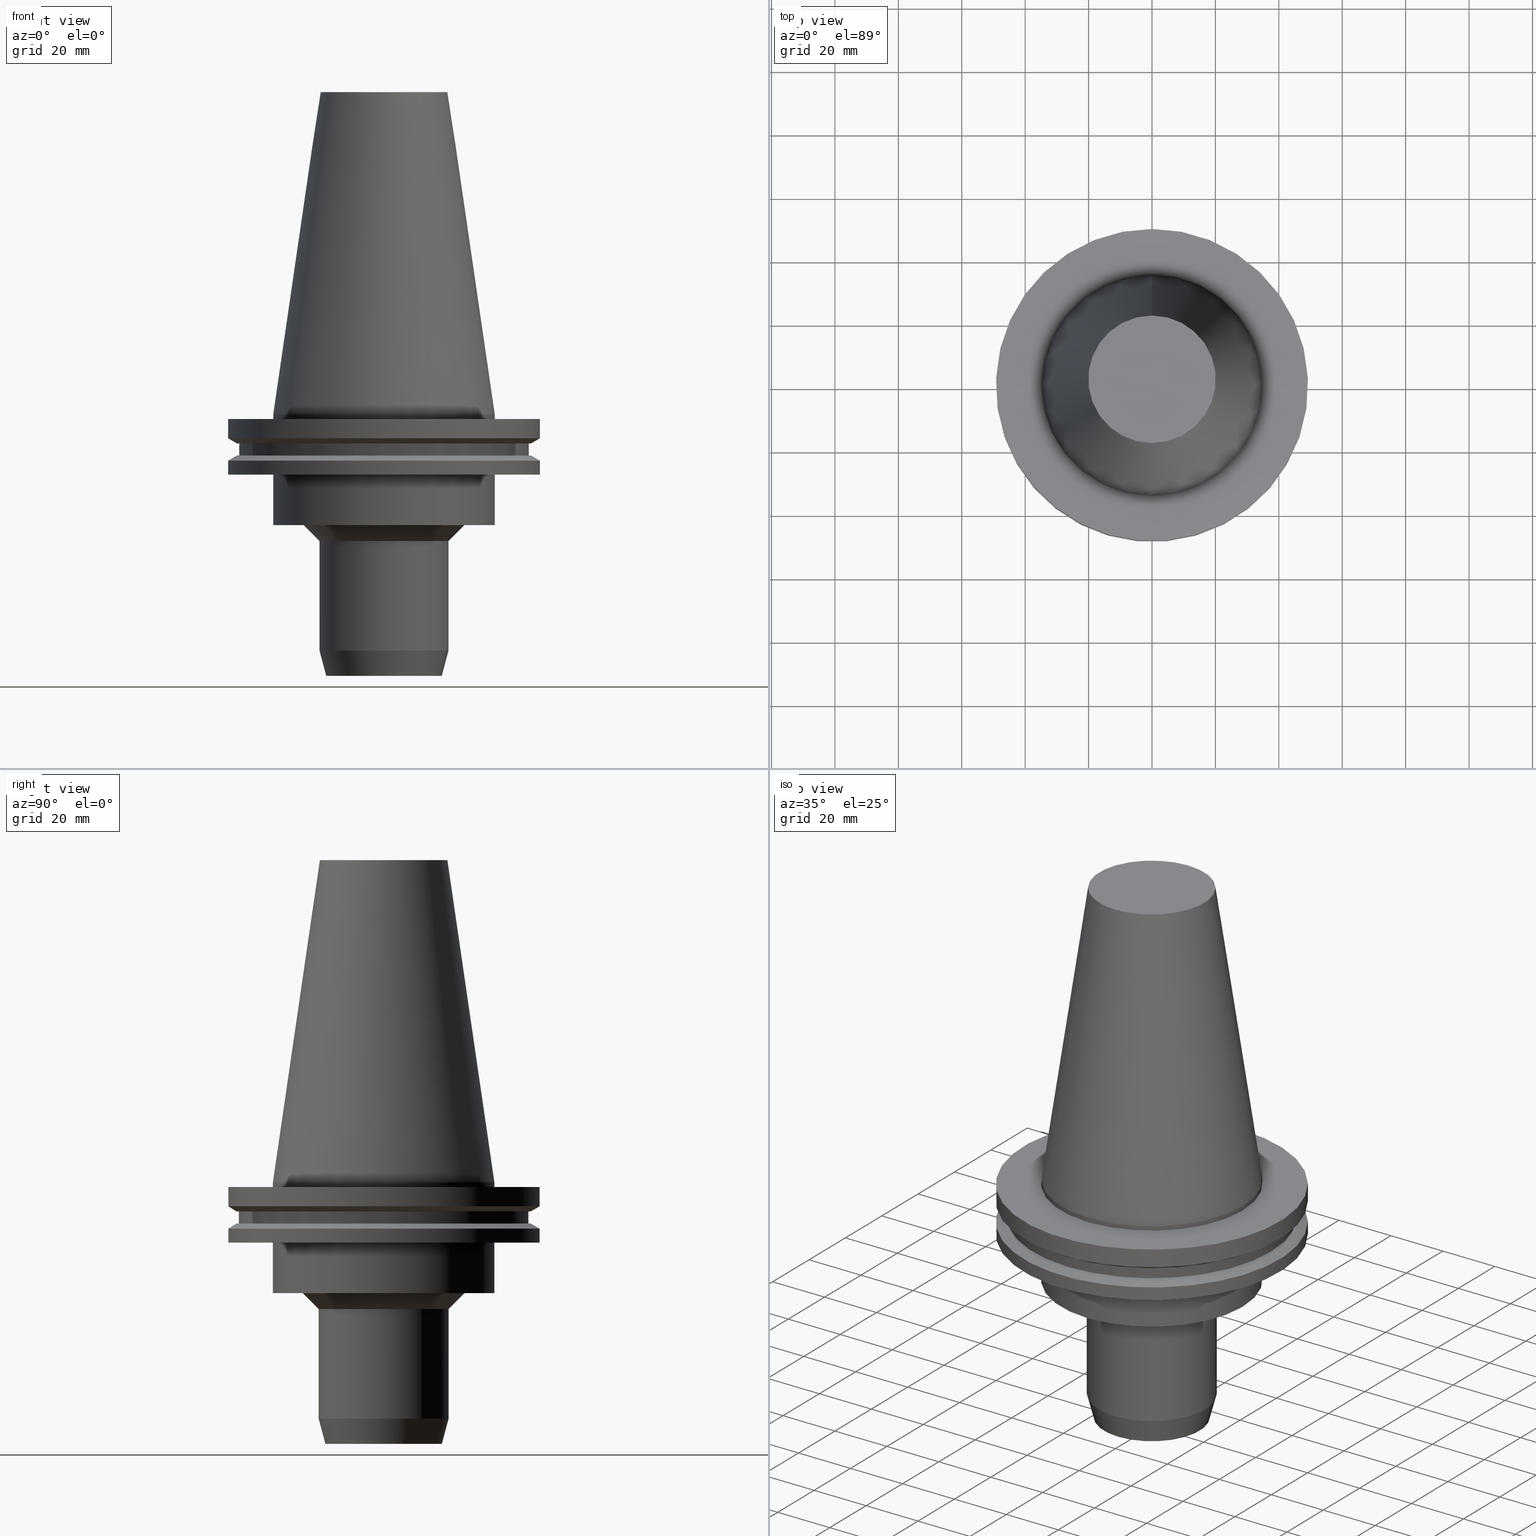
[diagram: canonical four-view strip — front | top / right | iso, engineering-drawing reading convention]
A machine part, canonical four-view strip (front | top / right | iso — engineering-drawing reading convention). The complete STEP part file that produces these views, byte-faithful:
ISO-10303-21;
HEADER;
FILE_DESCRIPTION((''),'1');
FILE_NAME('V:/90_\X2\53D65F9730C730FC30BF\X0\/00_\X2\6DE18DEF30C730FC30BF\X0\/ALL/BCV-BKUS\X2\FF76FF80FF9BFF78FF9E752852A05DE556F3\X0\201801/BCV50-MGT/BCV50-MGT12-3.25.stp','2018-02-01T01:41:00',(''),(''),'Spatial Interop R21 SP3','Kubotek KeyCreator 2011 V10.0.2 (22737)',' ');
FILE_SCHEMA(('automotive_design'));
ENDSEC;
DATA;
#1=MECHANICAL_DESIGN_GEOMETRIC_PRESENTATION_REPRESENTATION(' ',(#10,#11,#12,#13,#14,#15,#16,#17,#18,#19,#20,#21,#22,#23,#24,#25,#26,#27,#28,#29,#30,#31,#32,#33,#34,#35,#36,#37,#38,#39,#40,#41,#42,#43,#44,#45),#6);
#2=PRODUCT_DEFINITION_CONTEXT('',#46,'design');
#3=APPLICATION_PROTOCOL_DEFINITION('INTERNATIONAL STANDARD','automotive_design',1994,#46);
#4=PRODUCT_CATEGORY_RELATIONSHIP('NONE','NONE',#47,#48);
#5=SHAPE_DEFINITION_REPRESENTATION(#49,#50);
#6= (GEOMETRIC_REPRESENTATION_CONTEXT(3)GLOBAL_UNCERTAINTY_ASSIGNED_CONTEXT((#53))GLOBAL_UNIT_ASSIGNED_CONTEXT((#55,#56,#57))REPRESENTATION_CONTEXT('NONE','WORKSPACE'));
#10=STYLED_ITEM('',(#59,#60),#61);
#11=STYLED_ITEM('',(#62),#63);
#12=STYLED_ITEM('',(#64),#65);
#13=STYLED_ITEM('',(#66),#67);
#14=STYLED_ITEM('',(#68),#69);
#15=STYLED_ITEM('',(#70),#71);
#16=STYLED_ITEM('',(#72,#73),#74);
#17=STYLED_ITEM('',(#75,#76),#77);
#18=STYLED_ITEM('',(#78),#79);
#19=STYLED_ITEM('',(#80,#81),#82);
#20=STYLED_ITEM('',(#83,#84),#85);
#21=STYLED_ITEM('',(#86,#87),#88);
#22=STYLED_ITEM('',(#89),#90);
#23=STYLED_ITEM('',(#91),#92);
#24=STYLED_ITEM('',(#93),#94);
#25=STYLED_ITEM('',(#95,#96),#97);
#26=STYLED_ITEM('',(#98,#99),#100);
#27=STYLED_ITEM('',(#101),#102);
#28=STYLED_ITEM('',(#103,#104),#105);
#29=STYLED_ITEM('',(#106),#107);
#30=STYLED_ITEM('',(#108),#109);
#31=STYLED_ITEM('',(#110,#111),#112);
#32=STYLED_ITEM('',(#113,#114),#115);
#33=STYLED_ITEM('',(#116,#117),#118);
#34=STYLED_ITEM('',(#119,#120),#121);
#35=STYLED_ITEM('',(#122),#123);
#36=STYLED_ITEM('',(#124),#125);
#37=STYLED_ITEM('',(#126,#127),#128);
#38=STYLED_ITEM('',(#129),#130);
#39=STYLED_ITEM('',(#131),#132);
#40=STYLED_ITEM('',(#133,#134),#135);
#41=STYLED_ITEM('',(#136,#137),#138);
#42=STYLED_ITEM('',(#139),#140);
#43=STYLED_ITEM('',(#141,#142),#143);
#44=STYLED_ITEM('',(#144,#145),#146);
#45=STYLED_ITEM('',(#147,#148),#149);
#46=APPLICATION_CONTEXT(' ');
#47=PRODUCT_CATEGORY('part','NONE');
#48=PRODUCT_RELATED_PRODUCT_CATEGORY('detail',' ',(#150));
#49=PRODUCT_DEFINITION_SHAPE('NONE','NONE',#151);
#50=ADVANCED_BREP_SHAPE_REPRESENTATION('Unnamed[1]',(#112,#152),#6);
#53=UNCERTAINTY_MEASURE_WITH_UNIT(LENGTH_MEASURE(1.0E-006),#55,'','');
#55= (CONVERSION_BASED_UNIT('MILLIMETRE',#155)LENGTH_UNIT()NAMED_UNIT(#158));
#56= (NAMED_UNIT(#160)PLANE_ANGLE_UNIT()SI_UNIT($,.RADIAN.));
#57= (NAMED_UNIT(#160)SOLID_ANGLE_UNIT()SI_UNIT($,.STERADIAN.));
#59=PRESENTATION_STYLE_ASSIGNMENT((#166));
#60=PRESENTATION_STYLE_ASSIGNMENT((#167));
#61=ADVANCED_FACE('Unnamed[1]',(#168,#169),#170,.T.);
#62=PRESENTATION_STYLE_ASSIGNMENT((#171));
#63=EDGE_CURVE('Unnamed[1]',#172,#172,#173,.T.);
#64=PRESENTATION_STYLE_ASSIGNMENT((#174));
#65=EDGE_CURVE('Unnamed[1]',#175,#175,#176,.T.);
#66=PRESENTATION_STYLE_ASSIGNMENT((#177));
#67=EDGE_CURVE('Unnamed[1]',#178,#178,#179,.T.);
#68=PRESENTATION_STYLE_ASSIGNMENT((#180));
#69=EDGE_CURVE('Unnamed[1]',#181,#181,#182,.T.);
#70=PRESENTATION_STYLE_ASSIGNMENT((#183));
#71=EDGE_CURVE('Unnamed[1]',#184,#184,#185,.T.);
#72=PRESENTATION_STYLE_ASSIGNMENT((#186));
#73=PRESENTATION_STYLE_ASSIGNMENT((#187));
#74=ADVANCED_FACE('Unnamed[1]',(#188),#189,.T.);
#75=PRESENTATION_STYLE_ASSIGNMENT((#190));
#76=PRESENTATION_STYLE_ASSIGNMENT((#191));
#77=ADVANCED_FACE('Unnamed[1]',(#192,#193),#194,.T.);
#78=PRESENTATION_STYLE_ASSIGNMENT((#195));
#79=EDGE_CURVE('Unnamed[1]',#196,#196,#197,.T.);
#80=PRESENTATION_STYLE_ASSIGNMENT((#198));
#81=PRESENTATION_STYLE_ASSIGNMENT((#199));
#82=ADVANCED_FACE('Unnamed[1]',(#200,#201),#202,.T.);
#83=PRESENTATION_STYLE_ASSIGNMENT((#203));
#84=PRESENTATION_STYLE_ASSIGNMENT((#204));
#85=ADVANCED_FACE('Unnamed[1]',(#205,#206),#207,.T.);
#86=PRESENTATION_STYLE_ASSIGNMENT((#208));
#87=PRESENTATION_STYLE_ASSIGNMENT((#209));
#88=ADVANCED_FACE('Unnamed[1]',(#210,#211),#212,.T.);
#89=PRESENTATION_STYLE_ASSIGNMENT((#213));
#90=EDGE_CURVE('Unnamed[1]',#214,#214,#215,.T.);
#91=PRESENTATION_STYLE_ASSIGNMENT((#216));
#92=EDGE_CURVE('Unnamed[1]',#217,#217,#218,.T.);
#93=PRESENTATION_STYLE_ASSIGNMENT((#219));
#94=EDGE_CURVE('Unnamed[1]',#220,#220,#221,.T.);
#95=PRESENTATION_STYLE_ASSIGNMENT((#222));
#96=PRESENTATION_STYLE_ASSIGNMENT((#223));
#97=ADVANCED_FACE('Unnamed[1]',(#224),#225,.T.);
#98=PRESENTATION_STYLE_ASSIGNMENT((#226));
#99=PRESENTATION_STYLE_ASSIGNMENT((#227));
#100=ADVANCED_FACE('Unnamed[1]',(#228,#229),#230,.T.);
#101=PRESENTATION_STYLE_ASSIGNMENT((#231));
#102=EDGE_CURVE('Unnamed[1]',#232,#232,#233,.T.);
#103=PRESENTATION_STYLE_ASSIGNMENT((#234));
#104=PRESENTATION_STYLE_ASSIGNMENT((#235));
#105=ADVANCED_FACE('Unnamed[1]',(#236,#237),#238,.T.);
#106=PRESENTATION_STYLE_ASSIGNMENT((#239));
#107=EDGE_CURVE('Unnamed[1]',#240,#240,#241,.T.);
#108=PRESENTATION_STYLE_ASSIGNMENT((#242));
#109=EDGE_CURVE('Unnamed[1]',#243,#243,#244,.T.);
#110=PRESENTATION_STYLE_ASSIGNMENT((#245));
#111=PRESENTATION_STYLE_ASSIGNMENT((#246));
#112=MANIFOLD_SOLID_BREP('Unnamed[1]',#247);
#113=PRESENTATION_STYLE_ASSIGNMENT((#248));
#114=PRESENTATION_STYLE_ASSIGNMENT((#249));
#115=ADVANCED_FACE('Unnamed[1]',(#250,#251),#252,.T.);
#116=PRESENTATION_STYLE_ASSIGNMENT((#253));
#117=PRESENTATION_STYLE_ASSIGNMENT((#254));
#118=ADVANCED_FACE('Unnamed[1]',(#255,#256),#257,.T.);
#119=PRESENTATION_STYLE_ASSIGNMENT((#258));
#120=PRESENTATION_STYLE_ASSIGNMENT((#259));
#121=ADVANCED_FACE('Unnamed[1]',(#260,#261),#262,.T.);
#122=PRESENTATION_STYLE_ASSIGNMENT((#263));
#123=EDGE_CURVE('Unnamed[1]',#264,#264,#265,.T.);
#124=PRESENTATION_STYLE_ASSIGNMENT((#266));
#125=EDGE_CURVE('Unnamed[1]',#267,#267,#268,.T.);
#126=PRESENTATION_STYLE_ASSIGNMENT((#269));
#127=PRESENTATION_STYLE_ASSIGNMENT((#270));
#128=ADVANCED_FACE('Unnamed[1]',(#271,#272),#273,.T.);
#129=PRESENTATION_STYLE_ASSIGNMENT((#274));
#130=EDGE_CURVE('Unnamed[1]',#275,#275,#276,.T.);
#131=PRESENTATION_STYLE_ASSIGNMENT((#277));
#132=EDGE_CURVE('Unnamed[1]',#278,#278,#279,.T.);
#133=PRESENTATION_STYLE_ASSIGNMENT((#280));
#134=PRESENTATION_STYLE_ASSIGNMENT((#281));
#135=ADVANCED_FACE('Unnamed[1]',(#282,#283),#284,.T.);
#136=PRESENTATION_STYLE_ASSIGNMENT((#285));
#137=PRESENTATION_STYLE_ASSIGNMENT((#286));
#138=ADVANCED_FACE('Unnamed[1]',(#287,#288),#289,.T.);
#139=PRESENTATION_STYLE_ASSIGNMENT((#290));
#140=EDGE_CURVE('Unnamed[1]',#291,#291,#292,.T.);
#141=PRESENTATION_STYLE_ASSIGNMENT((#293));
#142=PRESENTATION_STYLE_ASSIGNMENT((#294));
#143=ADVANCED_FACE('Unnamed[1]',(#295,#296),#297,.T.);
#144=PRESENTATION_STYLE_ASSIGNMENT((#298));
#145=PRESENTATION_STYLE_ASSIGNMENT((#299));
#146=ADVANCED_FACE('Unnamed[1]',(#300,#301),#302,.T.);
#147=PRESENTATION_STYLE_ASSIGNMENT((#303));
#148=PRESENTATION_STYLE_ASSIGNMENT((#304));
#149=ADVANCED_FACE('Unnamed[1]',(#305,#306),#307,.T.);
#150=PRODUCT('Unnamed[1]','Unnamed[1]','PART-Unnamed[1]-DESC',(#308));
#151=PRODUCT_DEFINITION('NONE','NONE',#309,#2);
#152=AXIS2_PLACEMENT_3D('',#310,#311,#312);
#155=LENGTH_MEASURE_WITH_UNIT(LENGTH_MEASURE(1.0),#313);
#158=DIMENSIONAL_EXPONENTS(1.0,0.0,0.0,0.0,0.0,0.0,0.0);
#160=DIMENSIONAL_EXPONENTS(0.0,0.0,0.0,0.0,0.0,0.0,0.0);
#166=SURFACE_STYLE_USAGE(.BOTH.,#314);
#167=CURVE_STYLE('',#315,POSITIVE_LENGTH_MEASURE(1000.0),#316);
#168=FACE_BOUND('',#317,.T.);
#169=FACE_OUTER_BOUND('',#318,.T.);
#170=PLANE('',#319);
#171=CURVE_STYLE('',#320,POSITIVE_LENGTH_MEASURE(1000.0),#321);
#172=VERTEX_POINT('',#322);
#173=CIRCLE('',#323,45.6449999999999);
#174=CURVE_STYLE('',#324,POSITIVE_LENGTH_MEASURE(1000.0),#325);
#175=VERTEX_POINT('',#326);
#176=CIRCLE('',#327,34.925);
#177=CURVE_STYLE('',#328,POSITIVE_LENGTH_MEASURE(1000.0),#329);
#178=VERTEX_POINT('',#330);
#179=CIRCLE('',#331,45.6449999999999);
#180=CURVE_STYLE('',#332,POSITIVE_LENGTH_MEASURE(1000.0),#333);
#181=VERTEX_POINT('',#334);
#182=CIRCLE('',#335,34.925);
#183=CURVE_STYLE('',#336,POSITIVE_LENGTH_MEASURE(1000.0),#337);
#184=VERTEX_POINT('',#338);
#185=CIRCLE('',#339,49.2124999999999);
#186=SURFACE_STYLE_USAGE(.BOTH.,#340);
#187=CURVE_STYLE('',#341,POSITIVE_LENGTH_MEASURE(1000.0),#342);
#188=FACE_OUTER_BOUND('',#343,.T.);
#189=PLANE('',#344);
#190=SURFACE_STYLE_USAGE(.BOTH.,#345);
#191=CURVE_STYLE('',#346,POSITIVE_LENGTH_MEASURE(1000.0),#347);
#192=FACE_BOUND('',#348,.T.);
#193=FACE_BOUND('',#349,.T.);
#194=CYLINDRICAL_SURFACE('',#350,49.2125);
#195=CURVE_STYLE('',#351,POSITIVE_LENGTH_MEASURE(1000.0),#352);
#196=VERTEX_POINT('',#353);
#197=CIRCLE('',#354,20.1083333333333);
#198=SURFACE_STYLE_USAGE(.BOTH.,#355);
#199=CURVE_STYLE('',#356,POSITIVE_LENGTH_MEASURE(1000.0),#357);
#200=FACE_BOUND('',#358,.T.);
#201=FACE_BOUND('',#359,.T.);
#202=CONICAL_SURFACE('',#360,27.5166666666666,0.144812498238938);
#203=SURFACE_STYLE_USAGE(.BOTH.,#361);
#204=CURVE_STYLE('',#362,POSITIVE_LENGTH_MEASURE(1000.0),#363);
#205=FACE_BOUND('',#364,.T.);
#206=FACE_BOUND('',#365,.T.);
#207=CONICAL_SURFACE('',#366,47.8225292269259,1.04719755119659);
#208=SURFACE_STYLE_USAGE(.BOTH.,#367);
#209=CURVE_STYLE('',#368,POSITIVE_LENGTH_MEASURE(1000.0),#369);
#210=FACE_BOUND('',#370,.T.);
#211=FACE_OUTER_BOUND('',#371,.T.);
#212=PLANE('',#372);
#213=CURVE_STYLE('',#373,POSITIVE_LENGTH_MEASURE(1000.0),#374);
#214=VERTEX_POINT('',#375);
#215=CIRCLE('',#376,49.2124999999999);
#216=CURVE_STYLE('',#377,POSITIVE_LENGTH_MEASURE(1000.0),#378);
#217=VERTEX_POINT('',#379);
#218=CIRCLE('',#380,46.4325584538518);
#219=CURVE_STYLE('',#381,POSITIVE_LENGTH_MEASURE(1000.0),#382);
#220=VERTEX_POINT('',#383);
#221=CIRCLE('',#384,18.3564064645584);
#222=SURFACE_STYLE_USAGE(.BOTH.,#385);
#223=CURVE_STYLE('',#386,POSITIVE_LENGTH_MEASURE(1000.0),#387);
#224=FACE_OUTER_BOUND('',#388,.T.);
#225=PLANE('',#389);
#226=SURFACE_STYLE_USAGE(.BOTH.,#390);
#227=CURVE_STYLE('',#391,POSITIVE_LENGTH_MEASURE(1000.0),#392);
#228=FACE_BOUND('',#393,.T.);
#229=FACE_BOUND('',#394,.T.);
#230=CONICAL_SURFACE('',#395,22.9999999999992,0.785398163397405);
#231=CURVE_STYLE('',#396,POSITIVE_LENGTH_MEASURE(1000.0),#397);
#232=VERTEX_POINT('',#398);
#233=CIRCLE('',#399,49.2125);
#234=SURFACE_STYLE_USAGE(.BOTH.,#400);
#235=CURVE_STYLE('',#401,POSITIVE_LENGTH_MEASURE(1000.0),#402);
#236=FACE_BOUND('',#403,.T.);
#237=FACE_OUTER_BOUND('',#404,.T.);
#238=PLANE('',#405);
#239=CURVE_STYLE('',#406,POSITIVE_LENGTH_MEASURE(1000.0),#407);
#240=VERTEX_POINT('',#408);
#241=CIRCLE('',#409,49.2124999999999);
#242=CURVE_STYLE('',#410,POSITIVE_LENGTH_MEASURE(1000.0),#411);
#243=VERTEX_POINT('',#412);
#244=CIRCLE('',#413,20.5000000000002);
#245=SURFACE_STYLE_USAGE(.BOTH.,#414);
#246=CURVE_STYLE('',#415,POSITIVE_LENGTH_MEASURE(1000.0),#416);
#247=CLOSED_SHELL('',(#97,#82,#138,#128,#77,#149,#61,#121,#135,#85,#146,#105,#118,#88,#100,#115,#143,#74));
#248=SURFACE_STYLE_USAGE(.BOTH.,#417);
#249=CURVE_STYLE('',#418,POSITIVE_LENGTH_MEASURE(1000.0),#419);
#250=FACE_BOUND('',#420,.T.);
#251=FACE_BOUND('',#421,.T.);
#252=CYLINDRICAL_SURFACE('',#422,20.4999999999997);
#253=SURFACE_STYLE_USAGE(.BOTH.,#423);
#254=CURVE_STYLE('',#424,POSITIVE_LENGTH_MEASURE(1000.0),#425);
#255=FACE_BOUND('',#426,.T.);
#256=FACE_BOUND('',#427,.T.);
#257=CYLINDRICAL_SURFACE('',#428,34.925);
#258=SURFACE_STYLE_USAGE(.BOTH.,#429);
#259=CURVE_STYLE('',#430,POSITIVE_LENGTH_MEASURE(1000.0),#431);
#260=FACE_BOUND('',#432,.T.);
#261=FACE_BOUND('',#433,.T.);
#262=CYLINDRICAL_SURFACE('',#434,45.6449999999999);
#263=CURVE_STYLE('',#435,POSITIVE_LENGTH_MEASURE(1000.0),#436);
#264=VERTEX_POINT('',#437);
#265=CIRCLE('',#438,34.925);
#266=CURVE_STYLE('',#439,POSITIVE_LENGTH_MEASURE(1000.0),#440);
#267=VERTEX_POINT('',#441);
#268=CIRCLE('',#442,25.4999999999991);
#269=SURFACE_STYLE_USAGE(.BOTH.,#443);
#270=CURVE_STYLE('',#444,POSITIVE_LENGTH_MEASURE(1000.0),#445);
#271=FACE_OUTER_BOUND('',#446,.T.);
#272=FACE_BOUND('',#447,.T.);
#273=PLANE('',#448);
#274=CURVE_STYLE('',#449,POSITIVE_LENGTH_MEASURE(1000.0),#450);
#275=VERTEX_POINT('',#451);
#276=CIRCLE('',#452,20.4999999999992);
#277=CURVE_STYLE('',#453,POSITIVE_LENGTH_MEASURE(1000.0),#454);
#278=VERTEX_POINT('',#455);
#279=CIRCLE('',#456,34.925);
#280=SURFACE_STYLE_USAGE(.BOTH.,#457);
#281=CURVE_STYLE('',#458,POSITIVE_LENGTH_MEASURE(1000.0),#459);
#282=FACE_OUTER_BOUND('',#460,.T.);
#283=FACE_BOUND('',#461,.T.);
#284=PLANE('',#462);
#285=SURFACE_STYLE_USAGE(.BOTH.,#463);
#286=CURVE_STYLE('',#464,POSITIVE_LENGTH_MEASURE(1000.0),#465);
#287=FACE_BOUND('',#466,.T.);
#288=FACE_BOUND('',#467,.T.);
#289=CYLINDRICAL_SURFACE('',#468,34.925);
#290=CURVE_STYLE('',#469,POSITIVE_LENGTH_MEASURE(1000.0),#470);
#291=VERTEX_POINT('',#471);
#292=CIRCLE('',#472,46.432558453852);
#293=SURFACE_STYLE_USAGE(.BOTH.,#473);
#294=CURVE_STYLE('',#474,POSITIVE_LENGTH_MEASURE(1000.0),#475);
#295=FACE_BOUND('',#476,.T.);
#296=FACE_BOUND('',#477,.T.);
#297=CONICAL_SURFACE('',#478,19.4282032322793,0.261799387022769);
#298=SURFACE_STYLE_USAGE(.BOTH.,#479);
#299=CURVE_STYLE('',#480,POSITIVE_LENGTH_MEASURE(1000.0),#481);
#300=FACE_BOUND('',#482,.T.);
#301=FACE_BOUND('',#483,.T.);
#302=CYLINDRICAL_SURFACE('',#484,49.2124999999999);
#303=SURFACE_STYLE_USAGE(.BOTH.,#485);
#304=CURVE_STYLE('',#486,POSITIVE_LENGTH_MEASURE(1000.0),#487);
#305=FACE_BOUND('',#488,.T.);
#306=FACE_BOUND('',#489,.T.);
#307=CONICAL_SURFACE('',#490,47.822529226926,1.04719755119663);
#308=PRODUCT_CONTEXT('',#46,'mechanical');
#309=PRODUCT_DEFINITION_FORMATION_WITH_SPECIFIED_SOURCE(' ','NONE',#150,.NOT_KNOWN.);
#310=CARTESIAN_POINT('',(0.0,0.0,0.0));
#311=DIRECTION('',(0.0,0.0,1.0));
#312=DIRECTION('',(1.0,0.0,0.0));
#313= (NAMED_UNIT(#158)LENGTH_UNIT()SI_UNIT(.MILLI.,.METRE.));
#314=SURFACE_SIDE_STYLE('',(#492));
#315=DRAUGHTING_PRE_DEFINED_CURVE_FONT('continuous');
#316=COLOUR_RGB('',0.0,1.0,0.0);
#317=EDGE_LOOP('',(#493));
#318=EDGE_LOOP('',(#494));
#319=AXIS2_PLACEMENT_3D('',#495,#496,#497);
#320=DRAUGHTING_PRE_DEFINED_CURVE_FONT('continuous');
#321=COLOUR_RGB('',0.0,1.0,0.0);
#322=CARTESIAN_POINT('',(5.63337527607778E-016,45.6449999999999,-9.19999999999993));
#323=AXIS2_PLACEMENT_3D('',#498,#499,#500);
#324=DRAUGHTING_PRE_DEFINED_CURVE_FONT('continuous');
#325=COLOUR_RGB('',0.0,1.0,0.0);
#326=CARTESIAN_POINT('',(4.82986938111671E-029,34.925,-7.9153078510529E-013));
#327=AXIS2_PLACEMENT_3D('',#501,#502,#503);
#328=DRAUGHTING_PRE_DEFINED_CURVE_FONT('continuous');
#329=COLOUR_RGB('',0.0,1.0,0.0);
#330=CARTESIAN_POINT('',(7.98469713044071E-016,45.6449999999999,-13.04));
#331=AXIS2_PLACEMENT_3D('',#504,#505,#506);
#332=DRAUGHTING_PRE_DEFINED_CURVE_FONT('continuous');
#333=COLOUR_RGB('',0.0,1.0,0.0);
#334=CARTESIAN_POINT('',(9.18485099360511E-017,34.925,-1.5));
#335=AXIS2_PLACEMENT_3D('',#507,#508,#509);
#336=DRAUGHTING_PRE_DEFINED_CURVE_FONT('continuous');
#337=COLOUR_RGB('',0.0,1.0,0.0);
#338=CARTESIAN_POINT('',(1.16647607618786E-015,49.2124999999999,-19.0500000000001));
#339=AXIS2_PLACEMENT_3D('',#510,#511,#512);
#340=SURFACE_SIDE_STYLE('',(#513));
#341=DRAUGHTING_PRE_DEFINED_CURVE_FONT('continuous');
#342=COLOUR_RGB('',0.0,1.0,0.0);
#343=EDGE_LOOP('',(#514));
#344=AXIS2_PLACEMENT_3D('',#515,#516,#517);
#345=SURFACE_SIDE_STYLE('',(#518));
#346=DRAUGHTING_PRE_DEFINED_CURVE_FONT('continuous');
#347=COLOUR_RGB('',0.0,1.0,0.0);
#348=EDGE_LOOP('',(#519));
#349=EDGE_LOOP('',(#520));
#350=AXIS2_PLACEMENT_3D('',#521,#522,#523);
#351=DRAUGHTING_PRE_DEFINED_CURVE_FONT('continuous');
#352=COLOUR_RGB('',0.0,1.0,0.0);
#353=CARTESIAN_POINT('',(-6.22120573966855E-015,20.1083333333332,101.6));
#354=AXIS2_PLACEMENT_3D('',#524,#525,#526);
#355=SURFACE_SIDE_STYLE('',(#527));
#356=DRAUGHTING_PRE_DEFINED_CURVE_FONT('continuous');
#357=COLOUR_RGB('',0.0,1.0,0.0);
#358=EDGE_LOOP('',(#528));
#359=EDGE_LOOP('',(#529));
#360=AXIS2_PLACEMENT_3D('',#530,#531,#532);
#361=SURFACE_SIDE_STYLE('',(#533));
#362=DRAUGHTING_PRE_DEFINED_CURVE_FONT('continuous');
#363=COLOUR_RGB('',0.0,1.0,0.0);
#364=EDGE_LOOP('',(#534));
#365=EDGE_LOOP('',(#535));
#366=AXIS2_PLACEMENT_3D('',#536,#537,#538);
#367=SURFACE_SIDE_STYLE('',(#539));
#368=DRAUGHTING_PRE_DEFINED_CURVE_FONT('continuous');
#369=COLOUR_RGB('',0.0,1.0,0.0);
#370=EDGE_LOOP('',(#540));
#371=EDGE_LOOP('',(#541));
#372=AXIS2_PLACEMENT_3D('',#542,#543,#544);
#373=DRAUGHTING_PRE_DEFINED_CURVE_FONT('continuous');
#374=COLOUR_RGB('',0.0,1.0,0.0);
#375=CARTESIAN_POINT('',(9.18485099360509E-017,49.2124999999999,-1.49999999999999));
#376=AXIS2_PLACEMENT_3D('',#545,#546,#547);
#377=DRAUGHTING_PRE_DEFINED_CURVE_FONT('continuous');
#378=COLOUR_RGB('',0.0,1.0,0.0);
#379=CARTESIAN_POINT('',(7.98469713044071E-016,46.4325584538519,-13.04));
#380=AXIS2_PLACEMENT_3D('',#548,#549,#550);
#381=DRAUGHTING_PRE_DEFINED_CURVE_FONT('continuous');
#382=COLOUR_RGB('',0.0,1.0,0.0);
#383=CARTESIAN_POINT('',(5.0547296634807E-015,18.3564064645584,-82.55));
#384=AXIS2_PLACEMENT_3D('',#551,#552,#553);
#385=SURFACE_SIDE_STYLE('',(#554));
#386=DRAUGHTING_PRE_DEFINED_CURVE_FONT('continuous');
#387=COLOUR_RGB('',0.0,1.0,0.0);
#388=EDGE_LOOP('',(#555));
#389=AXIS2_PLACEMENT_3D('',#556,#557,#558);
#390=SURFACE_SIDE_STYLE('',(#559));
#391=DRAUGHTING_PRE_DEFINED_CURVE_FONT('continuous');
#392=COLOUR_RGB('',0.0,1.0,0.0);
#393=EDGE_LOOP('',(#560));
#394=EDGE_LOOP('',(#561));
#395=AXIS2_PLACEMENT_3D('',#562,#563,#564);
#396=DRAUGHTING_PRE_DEFINED_CURVE_FONT('continuous');
#397=COLOUR_RGB('',0.0,1.0,0.0);
#398=CARTESIAN_POINT('',(4.65059621976208E-016,49.2125,-7.59500000000002));
#399=AXIS2_PLACEMENT_3D('',#565,#566,#567);
#400=SURFACE_SIDE_STYLE('',(#568));
#401=DRAUGHTING_PRE_DEFINED_CURVE_FONT('continuous');
#402=COLOUR_RGB('',0.0,1.0,0.0);
#403=EDGE_LOOP('',(#569));
#404=EDGE_LOOP('',(#570));
#405=AXIS2_PLACEMENT_3D('',#571,#572,#573);
#406=DRAUGHTING_PRE_DEFINED_CURVE_FONT('continuous');
#407=COLOUR_RGB('',0.0,1.0,0.0);
#408=CARTESIAN_POINT('',(8.96747618675648E-016,49.2124999999999,-14.645));
#409=AXIS2_PLACEMENT_3D('',#574,#575,#576);
#410=DRAUGHTING_PRE_DEFINED_CURVE_FONT('continuous');
#411=COLOUR_RGB('',0.0,1.0,0.0);
#412=CARTESIAN_POINT('',(4.56487094321621E-015,20.5000000000003,-74.5499999901106));
#413=AXIS2_PLACEMENT_3D('',#577,#578,#579);
#414=SURFACE_SIDE_STYLE('',(#580));
#415=DRAUGHTING_PRE_DEFINED_CURVE_FONT('continuous');
#416=COLOUR_RGB('',0.0,1.0,0.0);
#417=SURFACE_SIDE_STYLE('',(#581));
#418=DRAUGHTING_PRE_DEFINED_CURVE_FONT('continuous');
#419=COLOUR_RGB('',0.0,1.0,0.0);
#420=EDGE_LOOP('',(#582));
#421=EDGE_LOOP('',(#583));
#422=AXIS2_PLACEMENT_3D('',#584,#585,#586);
#423=SURFACE_SIDE_STYLE('',(#587));
#424=DRAUGHTING_PRE_DEFINED_CURVE_FONT('continuous');
#425=COLOUR_RGB('',0.0,1.0,0.0);
#426=EDGE_LOOP('',(#588));
#427=EDGE_LOOP('',(#589));
#428=AXIS2_PLACEMENT_3D('',#590,#591,#592);
#429=SURFACE_SIDE_STYLE('',(#593));
#430=DRAUGHTING_PRE_DEFINED_CURVE_FONT('continuous');
#431=COLOUR_RGB('',0.0,1.0,0.0);
#432=EDGE_LOOP('',(#594));
#433=EDGE_LOOP('',(#595));
#434=AXIS2_PLACEMENT_3D('',#596,#597,#598);
#435=DRAUGHTING_PRE_DEFINED_CURVE_FONT('continuous');
#436=COLOUR_RGB('',0.0,1.0,0.0);
#437=CARTESIAN_POINT('',(2.14313189850787E-015,34.925,-35.0000000000001));
#438=AXIS2_PLACEMENT_3D('',#599,#600,#601);
#439=DRAUGHTING_PRE_DEFINED_CURVE_FONT('continuous');
#440=COLOUR_RGB('',0.0,1.0,0.0);
#441=CARTESIAN_POINT('',(2.14313189850789E-015,25.4999999999991,-35.0000000000003));
#442=AXIS2_PLACEMENT_3D('',#602,#603,#604);
#443=SURFACE_SIDE_STYLE('',(#605));
#444=DRAUGHTING_PRE_DEFINED_CURVE_FONT('continuous');
#445=COLOUR_RGB('',0.0,1.0,0.0);
#446=EDGE_LOOP('',(#606));
#447=EDGE_LOOP('',(#607));
#448=AXIS2_PLACEMENT_3D('',#608,#609,#610);
#449=DRAUGHTING_PRE_DEFINED_CURVE_FONT('continuous');
#450=COLOUR_RGB('',0.0,1.0,0.0);
#451=CARTESIAN_POINT('',(2.44929359829474E-015,20.4999999999993,-40.0000000000006));
#452=AXIS2_PLACEMENT_3D('',#611,#612,#613);
#453=DRAUGHTING_PRE_DEFINED_CURVE_FONT('continuous');
#454=COLOUR_RGB('',0.0,1.0,0.0);
#455=CARTESIAN_POINT('',(1.16647607618786E-015,34.925,-19.0500000000001));
#456=AXIS2_PLACEMENT_3D('',#614,#615,#616);
#457=SURFACE_SIDE_STYLE('',(#617));
#458=DRAUGHTING_PRE_DEFINED_CURVE_FONT('continuous');
#459=COLOUR_RGB('',0.0,1.0,0.0);
#460=EDGE_LOOP('',(#618));
#461=EDGE_LOOP('',(#619));
#462=AXIS2_PLACEMENT_3D('',#620,#621,#622);
#463=SURFACE_SIDE_STYLE('',(#623));
#464=DRAUGHTING_PRE_DEFINED_CURVE_FONT('continuous');
#465=COLOUR_RGB('',0.0,1.0,0.0);
#466=EDGE_LOOP('',(#624));
#467=EDGE_LOOP('',(#625));
#468=AXIS2_PLACEMENT_3D('',#626,#627,#628);
#469=DRAUGHTING_PRE_DEFINED_CURVE_FONT('continuous');
#470=COLOUR_RGB('',0.0,1.0,0.0);
#471=CARTESIAN_POINT('',(5.63337527607778E-016,46.432558453852,-9.19999999999993));
#472=AXIS2_PLACEMENT_3D('',#629,#630,#631);
#473=SURFACE_SIDE_STYLE('',(#632));
#474=DRAUGHTING_PRE_DEFINED_CURVE_FONT('continuous');
#475=COLOUR_RGB('',0.0,1.0,0.0);
#476=EDGE_LOOP('',(#633));
#477=EDGE_LOOP('',(#634));
#478=AXIS2_PLACEMENT_3D('',#635,#636,#637);
#479=SURFACE_SIDE_STYLE('',(#638));
#480=DRAUGHTING_PRE_DEFINED_CURVE_FONT('continuous');
#481=COLOUR_RGB('',0.0,1.0,0.0);
#482=EDGE_LOOP('',(#639));
#483=EDGE_LOOP('',(#640));
#484=AXIS2_PLACEMENT_3D('',#641,#642,#643);
#485=SURFACE_SIDE_STYLE('',(#644));
#486=DRAUGHTING_PRE_DEFINED_CURVE_FONT('continuous');
#487=COLOUR_RGB('',0.0,1.0,0.0);
#488=EDGE_LOOP('',(#645));
#489=EDGE_LOOP('',(#646));
#490=AXIS2_PLACEMENT_3D('',#647,#648,#649);
#492=SURFACE_STYLE_FILL_AREA(#650);
#493=ORIENTED_EDGE('',*,*,#63,.F.);
#494=ORIENTED_EDGE('',*,*,#140,.T.);
#495=CARTESIAN_POINT('',(5.63337527607778E-016,46.0387792269259,-9.19999999999993));
#496=DIRECTION('',(6.12323399573677E-017,1.22464679914735E-016,-1.0));
#497=DIRECTION('',(-1.23259516440783E-032,1.0,1.22464679914735E-016));
#498=CARTESIAN_POINT('',(5.6333752760778E-016,1.30468608390899E-014,-9.19999999999996));
#499=DIRECTION('',(6.12323399573677E-017,7.22462196173127E-016,-1.0));
#500=DIRECTION('',(-4.90652035331836E-032,1.0,7.22462196173127E-016));
#501=CARTESIAN_POINT('',(4.95993415593426E-029,6.40020863429802E-015,-8.10018718766514E-013));
#502=DIRECTION('',(6.12323399573677E-017,7.22462196173144E-016,-1.0));
#503=DIRECTION('',(-4.90652035331952E-032,1.0,7.22462196173144E-016));
#504=CARTESIAN_POINT('',(7.98469713044074E-016,1.58211156723946E-014,-13.04));
#505=DIRECTION('',(6.12323399573677E-017,7.22462196173127E-016,-1.0));
#506=DIRECTION('',(-4.90652035331836E-032,1.0,7.22462196173127E-016));
#507=CARTESIAN_POINT('',(9.18485099360524E-017,7.48390192855709E-015,-1.50000000000001));
#508=DIRECTION('',(6.12323399573677E-017,7.22462196173145E-016,-1.0));
#509=DIRECTION('',(-4.90652035331953E-032,1.0,7.22462196173145E-016));
#510=CARTESIAN_POINT('',(1.16647607618786E-015,2.0163113471395E-014,-19.0500000000001));
#511=DIRECTION('',(6.12323399573677E-017,7.22462196173164E-016,-1.0));
#512=DIRECTION('',(-4.90652035331884E-032,1.0,7.22462196173164E-016));
#513=SURFACE_STYLE_FILL_AREA(#651);
#514=ORIENTED_EDGE('',*,*,#94,.T.);
#515=CARTESIAN_POINT('',(5.0547296634807E-015,9.17820323227924,-82.55));
#516=DIRECTION('',(6.12323399573677E-017,1.22464679914735E-016,-1.0));
#517=DIRECTION('',(-1.23259516440783E-032,1.0,1.22464679914735E-016));
#518=SURFACE_STYLE_FILL_AREA(#652);
#519=ORIENTED_EDGE('',*,*,#102,.F.);
#520=ORIENTED_EDGE('',*,*,#90,.T.);
#521=CARTESIAN_POINT('',(2.78454065956132E-016,9.68560547139463E-015,-4.54750000000004));
#522=DIRECTION('',(6.12323399573677E-017,7.22462196173163E-016,-1.0));
#523=DIRECTION('',(-4.90652035331883E-032,1.0,7.22462196173163E-016));
#524=CARTESIAN_POINT('',(-6.22120573966855E-015,-6.70019504968894E-014,101.6));
#525=DIRECTION('',(6.12323399573677E-017,7.22462196173083E-016,-1.0));
#526=DIRECTION('',(-4.90652035331843E-032,1.0,7.22462196173083E-016));
#527=SURFACE_STYLE_FILL_AREA(#653);
#528=ORIENTED_EDGE('',*,*,#65,.F.);
#529=ORIENTED_EDGE('',*,*,#79,.T.);
#530=CARTESIAN_POINT('',(-3.11060286983425E-015,-3.03008709312957E-014,50.7999999999996));
#531=DIRECTION('',(6.12323399573677E-017,7.22462196173063E-016,-1.0));
#532=DIRECTION('',(-4.90652035331879E-032,1.0,7.22462196173063E-016));
#533=SURFACE_STYLE_FILL_AREA(#654);
#534=ORIENTED_EDGE('',*,*,#107,.F.);
#535=ORIENTED_EDGE('',*,*,#92,.T.);
#536=CARTESIAN_POINT('',(8.47608665859862E-016,1.64008915848236E-014,-13.8425));
#537=DIRECTION('',(6.12323399573677E-017,7.22462196173074E-016,-1.0));
#538=DIRECTION('',(-4.90652035331864E-032,1.0,7.22462196173074E-016));
#539=SURFACE_STYLE_FILL_AREA(#655);
#540=ORIENTED_EDGE('',*,*,#125,.F.);
#541=ORIENTED_EDGE('',*,*,#123,.T.);
#542=CARTESIAN_POINT('',(2.14313189850788E-015,30.2124999999996,-35.0000000000002));
#543=DIRECTION('',(6.12323399573677E-017,2.72625585657091E-014,-1.0));
#544=DIRECTION('',(-1.67417740693391E-030,1.0,2.72625585657091E-014));
#545=CARTESIAN_POINT('',(9.18485099360532E-017,7.4839019285571E-015,-1.50000000000003));
#546=DIRECTION('',(6.12323399573677E-017,7.22462196173164E-016,-1.0));
#547=DIRECTION('',(-4.90652035331884E-032,1.0,7.22462196173164E-016));
#548=CARTESIAN_POINT('',(7.98469713044074E-016,1.58211156723946E-014,-13.04));
#549=DIRECTION('',(6.12323399573677E-017,7.22462196173118E-016,-1.0));
#550=DIRECTION('',(-4.90652035331844E-032,1.0,7.22462196173118E-016));
#551=CARTESIAN_POINT('',(5.0547296634807E-015,6.60394629283868E-014,-82.55));
#552=DIRECTION('',(6.12323399573677E-017,7.22462196173126E-016,-1.0));
#553=DIRECTION('',(-4.90652035331923E-032,1.0,7.22462196173125E-016));
#554=SURFACE_STYLE_FILL_AREA(#656);
#555=ORIENTED_EDGE('',*,*,#79,.F.);
#556=CARTESIAN_POINT('',(-6.22120573966855E-015,10.0541666666666,101.6));
#557=DIRECTION('',(-6.12323399573677E-017,-1.22464679914735E-016,1.0));
#558=DIRECTION('',(1.23259516440783E-032,-1.0,-1.22464679914735E-016));
#559=SURFACE_STYLE_FILL_AREA(#657);
#560=ORIENTED_EDGE('',*,*,#130,.F.);
#561=ORIENTED_EDGE('',*,*,#125,.T.);
#562=CARTESIAN_POINT('',(2.29621274840132E-015,3.3492540990789E-014,-37.5000000000005));
#563=DIRECTION('',(-6.12323399573677E-017,-7.22462196173099E-016,1.0));
#564=DIRECTION('',(-4.9065203533189E-032,1.0,7.22462196173099E-016));
#565=CARTESIAN_POINT('',(4.65059621976211E-016,1.18873090142322E-014,-7.59500000000006));
#566=DIRECTION('',(6.12323399573677E-017,7.22462196173162E-016,-1.0));
#567=DIRECTION('',(-4.90652035331882E-032,1.0,7.22462196173162E-016));
#568=SURFACE_STYLE_FILL_AREA(#658);
#569=ORIENTED_EDGE('',*,*,#132,.F.);
#570=ORIENTED_EDGE('',*,*,#71,.T.);
#571=CARTESIAN_POINT('',(1.16647607618786E-015,42.06875,-19.0500000000001));
#572=DIRECTION('',(6.12323399573677E-017,1.22464679914735E-016,-1.0));
#573=DIRECTION('',(-1.23259516440783E-032,1.0,1.22464679914735E-016));
#574=CARTESIAN_POINT('',(8.9674761867565E-016,1.69806674972525E-014,-14.645));
#575=DIRECTION('',(6.12323399573677E-017,7.22462196173164E-016,-1.0));
#576=DIRECTION('',(-4.90652035331884E-032,1.0,7.22462196173164E-016));
#577=CARTESIAN_POINT('',(4.56487094321621E-015,6.02597653518573E-014,-74.5499999901106));
#578=DIRECTION('',(6.12323399573677E-017,7.22462196173134E-016,-1.0));
#579=DIRECTION('',(-4.90652035331935E-032,1.0,7.22462196173134E-016));
#580=SURFACE_STYLE_FILL_AREA(#659);
#581=SURFACE_STYLE_FILL_AREA(#660);
#582=ORIENTED_EDGE('',*,*,#109,.F.);
#583=ORIENTED_EDGE('',*,*,#130,.T.);
#584=CARTESIAN_POINT('',(3.50708227075548E-015,4.77792309165396E-014,-57.2749999950556));
#585=DIRECTION('',(6.12323399573677E-017,7.22462196173072E-016,-1.0));
#586=DIRECTION('',(-4.9065203533186E-032,1.0,7.22462196173072E-016));
#587=SURFACE_STYLE_FILL_AREA(#661);
#588=ORIENTED_EDGE('',*,*,#123,.F.);
#589=ORIENTED_EDGE('',*,*,#132,.T.);
#590=CARTESIAN_POINT('',(1.65480398734787E-015,2.59247494858755E-014,-27.0250000000001));
#591=DIRECTION('',(6.12323399573677E-017,7.22462196173145E-016,-1.0));
#592=DIRECTION('',(-4.90652035331901E-032,1.0,7.22462196173145E-016));
#593=SURFACE_STYLE_FILL_AREA(#662);
#594=ORIENTED_EDGE('',*,*,#67,.F.);
#595=ORIENTED_EDGE('',*,*,#63,.T.);
#596=CARTESIAN_POINT('',(6.80903620325927E-016,1.44339882557423E-014,-11.12));
#597=DIRECTION('',(6.12323399573677E-017,7.22462196173127E-016,-1.0));
#598=DIRECTION('',(-4.90652035331836E-032,1.0,7.22462196173127E-016));
#599=CARTESIAN_POINT('',(2.14313189850787E-015,3.1686385500356E-014,-35.0000000000001));
#600=DIRECTION('',(6.12323399573677E-017,7.22462196173145E-016,-1.0));
#601=DIRECTION('',(-4.90652035331901E-032,1.0,7.22462196173145E-016));
#602=CARTESIAN_POINT('',(2.14313189850789E-015,3.16863855003561E-014,-35.0000000000003));
#603=DIRECTION('',(6.12323399573677E-017,7.22462196173044E-016,-1.0));
#604=DIRECTION('',(-4.90652035331799E-032,1.0,7.22462196173044E-016));
#605=SURFACE_STYLE_FILL_AREA(#663);
#606=ORIENTED_EDGE('',*,*,#90,.F.);
#607=ORIENTED_EDGE('',*,*,#69,.T.);
#608=CARTESIAN_POINT('',(9.1848509936051E-017,42.0687499999999,-1.49999999999999));
#609=DIRECTION('',(-6.12323399573677E-017,-1.22464679914735E-016,1.0));
#610=DIRECTION('',(1.23259516440783E-032,-1.0,-1.22464679914735E-016));
#611=CARTESIAN_POINT('',(2.44929359829474E-015,3.52986964812218E-014,-40.0000000000006));
#612=DIRECTION('',(6.12323399573677E-017,7.2246219617309E-016,-1.0));
#613=DIRECTION('',(-4.90652035331871E-032,1.0,7.2246219617309E-016));
#614=CARTESIAN_POINT('',(1.16647607618786E-015,2.0163113471395E-014,-19.0500000000001));
#615=DIRECTION('',(6.12323399573677E-017,7.22462196173145E-016,-1.0));
#616=DIRECTION('',(-4.90652035331901E-032,1.0,7.22462196173145E-016));
#617=SURFACE_STYLE_FILL_AREA(#664);
#618=ORIENTED_EDGE('',*,*,#92,.F.);
#619=ORIENTED_EDGE('',*,*,#67,.T.);
#620=CARTESIAN_POINT('',(7.98469713044071E-016,46.0387792269259,-13.04));
#621=DIRECTION('',(-6.12323399573677E-017,-1.22464679914735E-016,1.0));
#622=DIRECTION('',(1.23259516440783E-032,-1.0,-1.22464679914735E-016));
#623=SURFACE_STYLE_FILL_AREA(#665);
#624=ORIENTED_EDGE('',*,*,#69,.F.);
#625=ORIENTED_EDGE('',*,*,#65,.T.);
#626=CARTESIAN_POINT('',(4.5924254968051E-017,6.94205528142756E-015,-0.750000000000412));
#627=DIRECTION('',(6.12323399573677E-017,7.22462196173145E-016,-1.0));
#628=DIRECTION('',(-4.90652035331901E-032,1.0,7.22462196173145E-016));
#629=CARTESIAN_POINT('',(5.6333752760778E-016,1.30468608390899E-014,-9.19999999999996));
#630=DIRECTION('',(6.12323399573677E-017,7.22462196173116E-016,-1.0));
#631=DIRECTION('',(-4.90652035331843E-032,1.0,7.22462196173116E-016));
#632=SURFACE_STYLE_FILL_AREA(#666);
#633=ORIENTED_EDGE('',*,*,#94,.F.);
#634=ORIENTED_EDGE('',*,*,#109,.T.);
#635=CARTESIAN_POINT('',(4.80980030334846E-015,6.3149614140122E-014,-78.5499999950553));
#636=DIRECTION('',(-6.12323399573677E-017,-7.22462196173088E-016,1.0));
#637=DIRECTION('',(-4.90652035331883E-032,1.0,7.22462196173088E-016));
#638=SURFACE_STYLE_FILL_AREA(#667);
#639=ORIENTED_EDGE('',*,*,#71,.F.);
#640=ORIENTED_EDGE('',*,*,#107,.T.);
#641=CARTESIAN_POINT('',(1.03161184743175E-015,1.85718904843238E-014,-16.8475000000001));
#642=DIRECTION('',(6.12323399573677E-017,7.22462196173164E-016,-1.0));
#643=DIRECTION('',(-4.90652035331884E-032,1.0,7.22462196173164E-016));
#644=SURFACE_STYLE_FILL_AREA(#668);
#645=ORIENTED_EDGE('',*,*,#140,.F.);
#646=ORIENTED_EDGE('',*,*,#102,.T.);
#647=CARTESIAN_POINT('',(5.14198574791995E-016,1.2467084926661E-014,-8.39750000000001));
#648=DIRECTION('',(-6.12323399573677E-017,-7.22462196173072E-016,1.0));
#649=DIRECTION('',(-4.90652035331863E-032,1.0,7.22462196173072E-016));
#650=FILL_AREA_STYLE('',(#669));
#651=FILL_AREA_STYLE('',(#670));
#652=FILL_AREA_STYLE('',(#671));
#653=FILL_AREA_STYLE('',(#672));
#654=FILL_AREA_STYLE('',(#673));
#655=FILL_AREA_STYLE('',(#674));
#656=FILL_AREA_STYLE('',(#675));
#657=FILL_AREA_STYLE('',(#676));
#658=FILL_AREA_STYLE('',(#677));
#659=FILL_AREA_STYLE('',(#678));
#660=FILL_AREA_STYLE('',(#679));
#661=FILL_AREA_STYLE('',(#680));
#662=FILL_AREA_STYLE('',(#681));
#663=FILL_AREA_STYLE('',(#682));
#664=FILL_AREA_STYLE('',(#683));
#665=FILL_AREA_STYLE('',(#684));
#666=FILL_AREA_STYLE('',(#685));
#667=FILL_AREA_STYLE('',(#686));
#668=FILL_AREA_STYLE('',(#687));
#669=FILL_AREA_STYLE_COLOUR('',#688);
#670=FILL_AREA_STYLE_COLOUR('',#689);
#671=FILL_AREA_STYLE_COLOUR('',#690);
#672=FILL_AREA_STYLE_COLOUR('',#691);
#673=FILL_AREA_STYLE_COLOUR('',#692);
#674=FILL_AREA_STYLE_COLOUR('',#693);
#675=FILL_AREA_STYLE_COLOUR('',#694);
#676=FILL_AREA_STYLE_COLOUR('',#695);
#677=FILL_AREA_STYLE_COLOUR('',#696);
#678=FILL_AREA_STYLE_COLOUR('',#697);
#679=FILL_AREA_STYLE_COLOUR('',#698);
#680=FILL_AREA_STYLE_COLOUR('',#699);
#681=FILL_AREA_STYLE_COLOUR('',#700);
#682=FILL_AREA_STYLE_COLOUR('',#701);
#683=FILL_AREA_STYLE_COLOUR('',#702);
#684=FILL_AREA_STYLE_COLOUR('',#703);
#685=FILL_AREA_STYLE_COLOUR('',#704);
#686=FILL_AREA_STYLE_COLOUR('',#705);
#687=FILL_AREA_STYLE_COLOUR('',#706);
#688=COLOUR_RGB('',0.0,1.0,0.0);
#689=COLOUR_RGB('',0.0,1.0,0.0);
#690=COLOUR_RGB('',0.0,1.0,0.0);
#691=COLOUR_RGB('',0.0,1.0,0.0);
#692=COLOUR_RGB('',0.0,1.0,0.0);
#693=COLOUR_RGB('',0.0,1.0,0.0);
#694=COLOUR_RGB('',0.0,1.0,0.0);
#695=COLOUR_RGB('',0.0,1.0,0.0);
#696=COLOUR_RGB('',0.0,1.0,0.0);
#697=COLOUR_RGB('',0.0,1.0,0.0);
#698=COLOUR_RGB('',0.0,1.0,0.0);
#699=COLOUR_RGB('',0.0,1.0,0.0);
#700=COLOUR_RGB('',0.0,1.0,0.0);
#701=COLOUR_RGB('',0.0,1.0,0.0);
#702=COLOUR_RGB('',0.0,1.0,0.0);
#703=COLOUR_RGB('',0.0,1.0,0.0);
#704=COLOUR_RGB('',0.0,1.0,0.0);
#705=COLOUR_RGB('',0.0,1.0,0.0);
#706=COLOUR_RGB('',0.0,1.0,0.0);
ENDSEC;
END-ISO-10303-21;
